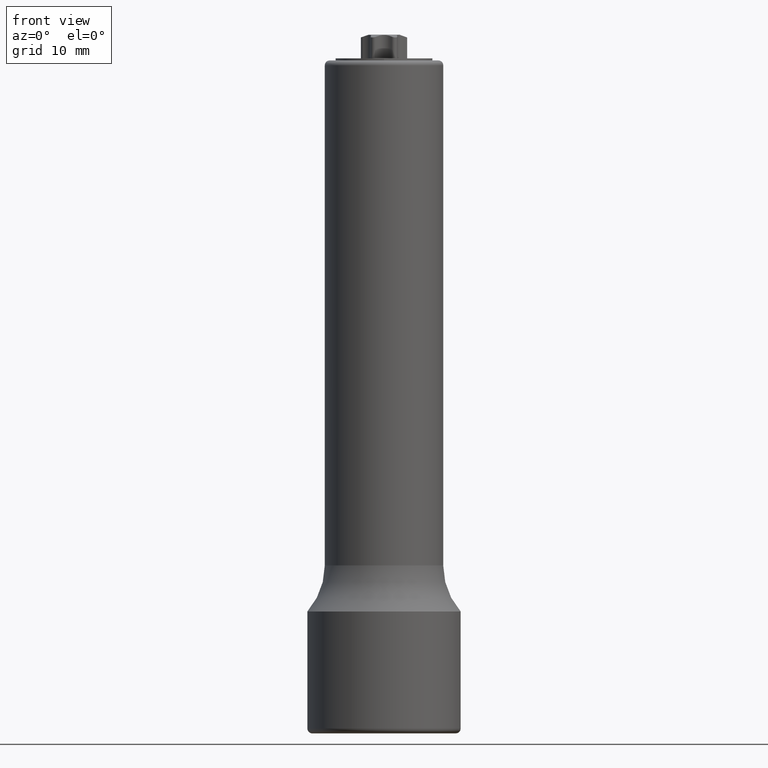
[diagram: clean part render]
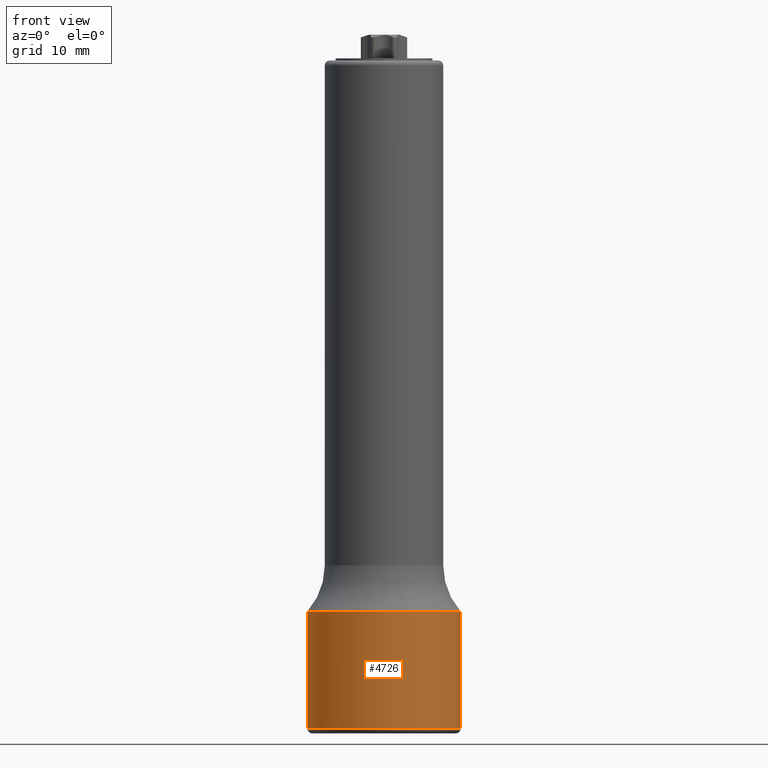
[diagram: same view with one face highlighted and labeled with its STEP entity id]
A machine part, front view. The second image highlights one B-rep face of the part: STEP entity #4726.
In plain terms, the highlighted cylindrical surface (partial cylindrical patch) has radius 11 mm, axis along (0, 0, 1).
Its self-contained STEP definition (entity closure, byte-faithful):
#4125=DIRECTION('',(-8.617178922120E-10,1.591379508075E-14,1.E0));
#4126=VECTOR('',#4125,1.680000001164E1);
#4127=CARTESIAN_POINT('',(-1.1E1,-2.640591244823E-13,4.E-1));
#4128=LINE('',#4127,#4126);
#4196=CARTESIAN_POINT('',(0.E0,0.E0,4.E-1));
#4197=DIRECTION('',(0.E0,0.E0,-1.E0));
#4198=DIRECTION('',(-1.E0,0.E0,0.E0));
#4199=AXIS2_PLACEMENT_3D('',#4196,#4197,#4198);
#4204=DIRECTION('',(8.617178922120E-10,-1.564333074859E-14,1.E0));
#4205=VECTOR('',#4204,1.680000001164E1);
#4206=CARTESIAN_POINT('',(1.1E1,2.612867948523E-13,4.E-1));
#4207=LINE('',#4206,#4205);
#4211=CARTESIAN_POINT('',(0.E0,0.E0,1.720000005626E1));
#4212=DIRECTION('',(0.E0,0.E0,1.E0));
#4213=DIRECTION('',(1.E0,0.E0,0.E0));
#4214=AXIS2_PLACEMENT_3D('',#4211,#4212,#4213);
#4451=CARTESIAN_POINT('',(-1.1E1,0.E0,1.720000005626E1));
#4452=CARTESIAN_POINT('',(1.1E1,0.E0,1.720000005626E1));
#4453=VERTEX_POINT('',#4451);
#4454=VERTEX_POINT('',#4452);
#4497=CARTESIAN_POINT('',(-1.1E1,0.E0,4.E-1));
#4498=CARTESIAN_POINT('',(1.1E1,0.E0,4.E-1));
#4499=VERTEX_POINT('',#4497);
#4500=VERTEX_POINT('',#4498);
#4714=CARTESIAN_POINT('',(0.E0,0.E0,-3.E-1));
#4715=DIRECTION('',(0.E0,0.E0,1.E0));
#4716=DIRECTION('',(1.E0,0.E0,0.E0));
#4717=AXIS2_PLACEMENT_3D('',#4714,#4715,#4716);
#4718=CYLINDRICAL_SURFACE('',#4717,1.1E1);
#4719=ORIENTED_EDGE('',*,*,#4708,.T.);
#4720=ORIENTED_EDGE('',*,*,#4678,.T.);
#4722=ORIENTED_EDGE('',*,*,#4721,.T.);
#4723=ORIENTED_EDGE('',*,*,#4674,.F.);
#4724=EDGE_LOOP('',(#4719,#4720,#4722,#4723));
#4725=FACE_OUTER_BOUND('',#4724,.F.);
#4726=ADVANCED_FACE('',(#4725),#4718,.T.);
#4200=CIRCLE('',#4199,1.1E1);
#4215=CIRCLE('',#4214,1.1E1);
#4674=EDGE_CURVE('',#4499,#4453,#4128,.T.);
#4678=EDGE_CURVE('',#4500,#4454,#4207,.T.);
#4708=EDGE_CURVE('',#4499,#4500,#4200,.T.);
#4721=EDGE_CURVE('',#4454,#4453,#4215,.T.);